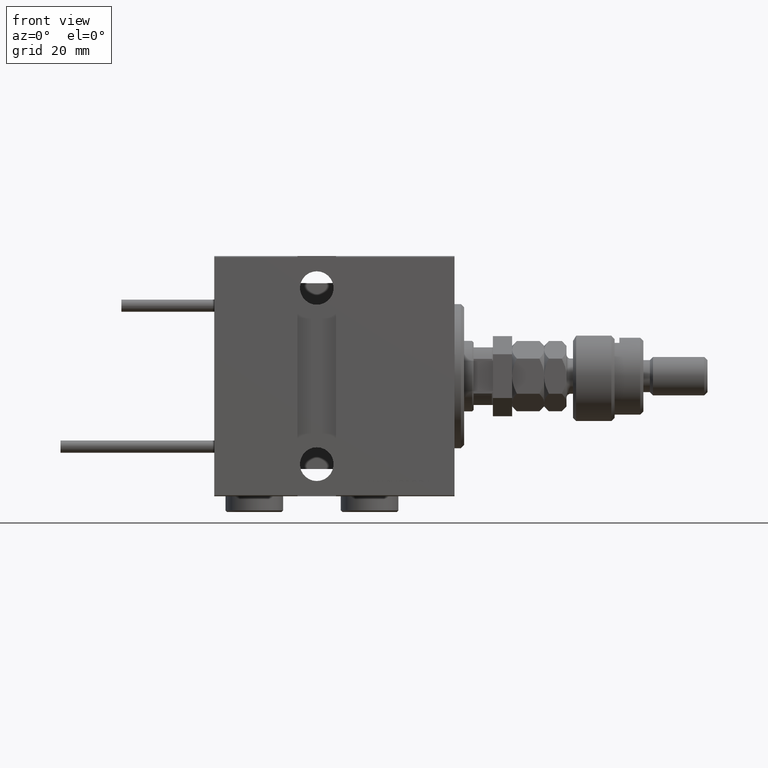
[diagram: clean part render]
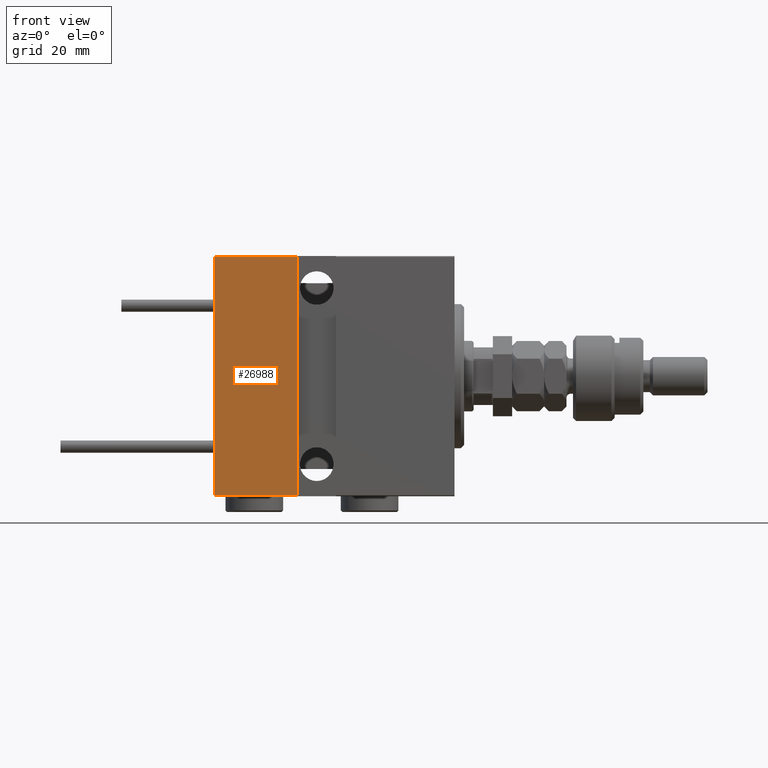
[diagram: same view with one face highlighted and labeled with its STEP entity id]
A machine part, front view. The second image highlights one B-rep face of the part: STEP entity #26988.
In plain terms, the highlighted planar face has unit normal (-0, 1, -0).
Its self-contained STEP definition (entity closure, byte-faithful):
#812 = DIRECTION ( 'NONE',  ( 0.000000000000000000, -9.251858538542970348E-17, 1.000000000000000000 ) ) ;
#2334 = DIRECTION ( 'NONE',  ( -9.251858538542978977E-17, -0.000000000000000000, -1.000000000000000000 ) ) ;
#3073 = EDGE_CURVE ( 'NONE', #53405, #33546, #16888, .T. ) ;
#4415 = VECTOR ( 'NONE', #812, 1000.000000000000000 ) ;
#8322 = VECTOR ( 'NONE', #13883, 1000.000000000000000 ) ;
#9549 = VERTEX_POINT ( 'NONE', #41110 ) ;
#13165 = EDGE_LOOP ( 'NONE', ( #29059, #23135, #40747, #26910 ) ) ;
#13536 = VECTOR ( 'NONE', #2334, 1000.000000000000000 ) ;
#13883 = DIRECTION ( 'NONE',  ( 1.000000000000000000, 0.000000000000000000, 0.000000000000000000 ) ) ;
#16888 = LINE ( 'NONE', #33470, #4415 ) ;
#17308 = CARTESIAN_POINT ( 'NONE',  ( 48.99999999999999289, 27.50000000000000000, -37.19999999999999574 ) ) ;
#17697 = LINE ( 'NONE', #34277, #8322 ) ;
#17746 = DIRECTION ( 'NONE',  ( 0.000000000000000000, 9.251858538542970348E-17, -1.000000000000000000 ) ) ;
#23135 = ORIENTED_EDGE ( 'NONE', *, *, #33270, .T. ) ;
#23759 = EDGE_CURVE ( 'NONE', #9549, #40125, #48574, .T. ) ;
#24174 = EDGE_CURVE ( 'NONE', #9549, #33546, #17697, .T. ) ;
#25100 = PLANE ( 'NONE',  #53556 ) ;
#26910 = ORIENTED_EDGE ( 'NONE', *, *, #24174, .T. ) ;
#26988 = ADVANCED_FACE ( 'NONE', ( #38417 ), #25100, .F. ) ;
#28549 = VECTOR ( 'NONE', #39755, 1000.000000000000000 ) ;
#29059 = ORIENTED_EDGE ( 'NONE', *, *, #3073, .F. ) ;
#29648 = CARTESIAN_POINT ( 'NONE',  ( 75.00000000000000000, 27.49999999999999645, 37.20000000000000995 ) ) ;
#33270 = EDGE_CURVE ( 'NONE', #53405, #40125, #43833, .T. ) ;
#33470 = CARTESIAN_POINT ( 'NONE',  ( 75.00000000000000000, 27.50000000000000355, -37.50000000000000711 ) ) ;
#33522 = CARTESIAN_POINT ( 'NONE',  ( 75.00000000000000000, 27.50000000000000355, -37.50000000000000711 ) ) ;
#33546 = VERTEX_POINT ( 'NONE', #29648 ) ;
#34055 = DIRECTION ( 'NONE',  ( 0.000000000000000000, -1.000000000000000000, -9.251858538542970348E-17 ) ) ;
#34277 = CARTESIAN_POINT ( 'NONE',  ( 75.00000000000000000, 27.49999999999999645, 37.20000000000000995 ) ) ;
#38417 = FACE_OUTER_BOUND ( 'NONE', #13165, .T. ) ;
#39755 = DIRECTION ( 'NONE',  ( -1.000000000000000000, 0.000000000000000000, 0.000000000000000000 ) ) ;
#40125 = VERTEX_POINT ( 'NONE', #17308 ) ;
#40747 = ORIENTED_EDGE ( 'NONE', *, *, #23759, .F. ) ;
#41110 = CARTESIAN_POINT ( 'NONE',  ( 49.00000000000000000, 27.50000000000000000, 37.20000000000000995 ) ) ;
#41142 = CARTESIAN_POINT ( 'NONE',  ( 75.00000000000000000, 27.50000000000000355, -37.19999999999999574 ) ) ;
#43833 = LINE ( 'NONE', #51964, #28549 ) ;
#47505 = CARTESIAN_POINT ( 'NONE',  ( 48.99999999999999289, 27.50000000000000000, -37.50000000000000711 ) ) ;
#48574 = LINE ( 'NONE', #47505, #13536 ) ;
#51964 = CARTESIAN_POINT ( 'NONE',  ( 75.00000000000000000, 27.50000000000000355, -37.19999999999999574 ) ) ;
#53405 = VERTEX_POINT ( 'NONE', #41142 ) ;
#53556 = AXIS2_PLACEMENT_3D ( 'NONE', #33522, #34055, #17746 ) ;